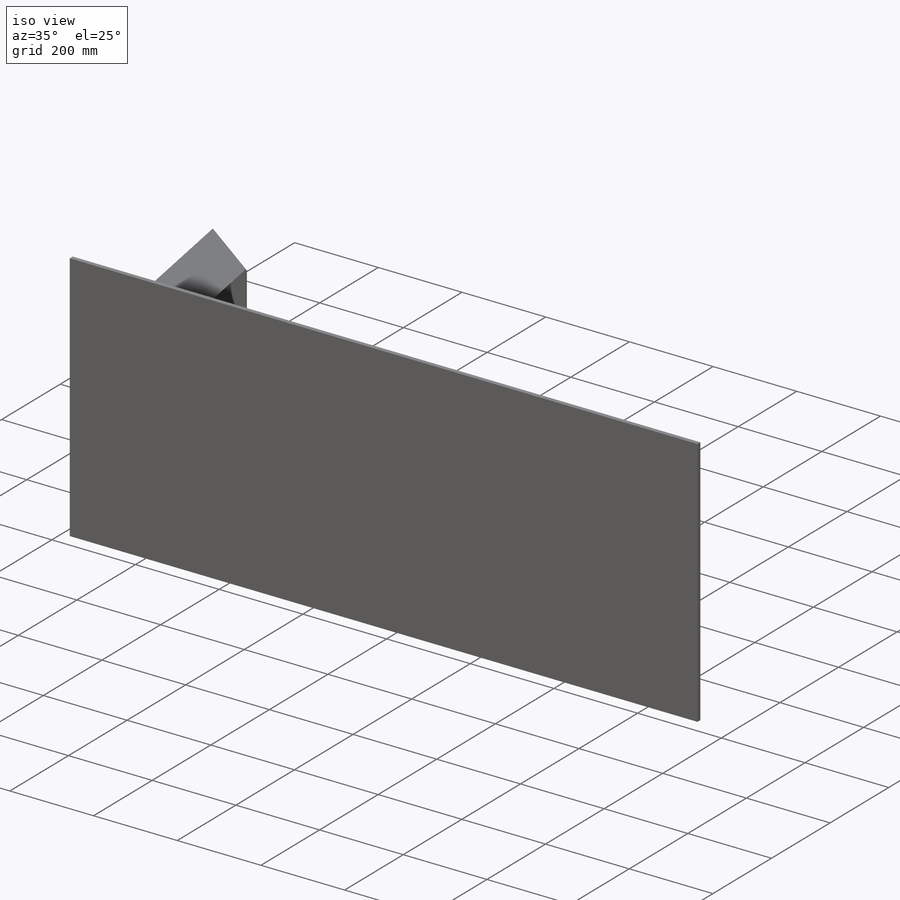
[diagram: iso view]
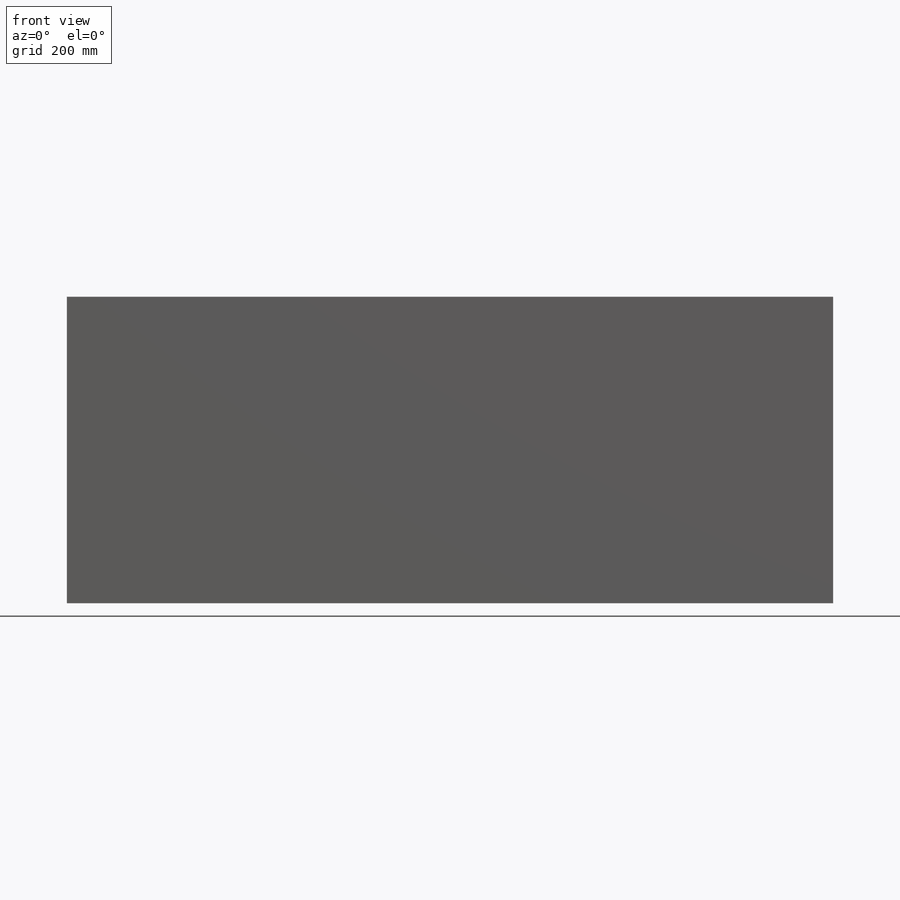
[diagram: front view]
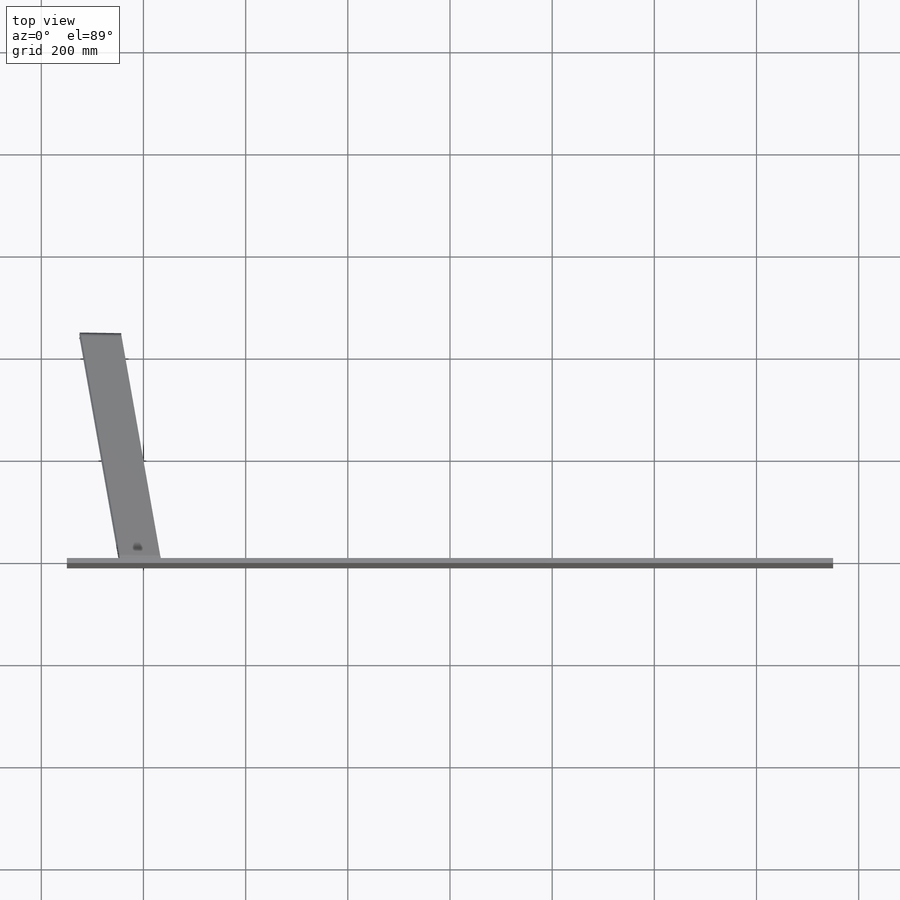
[diagram: top view]
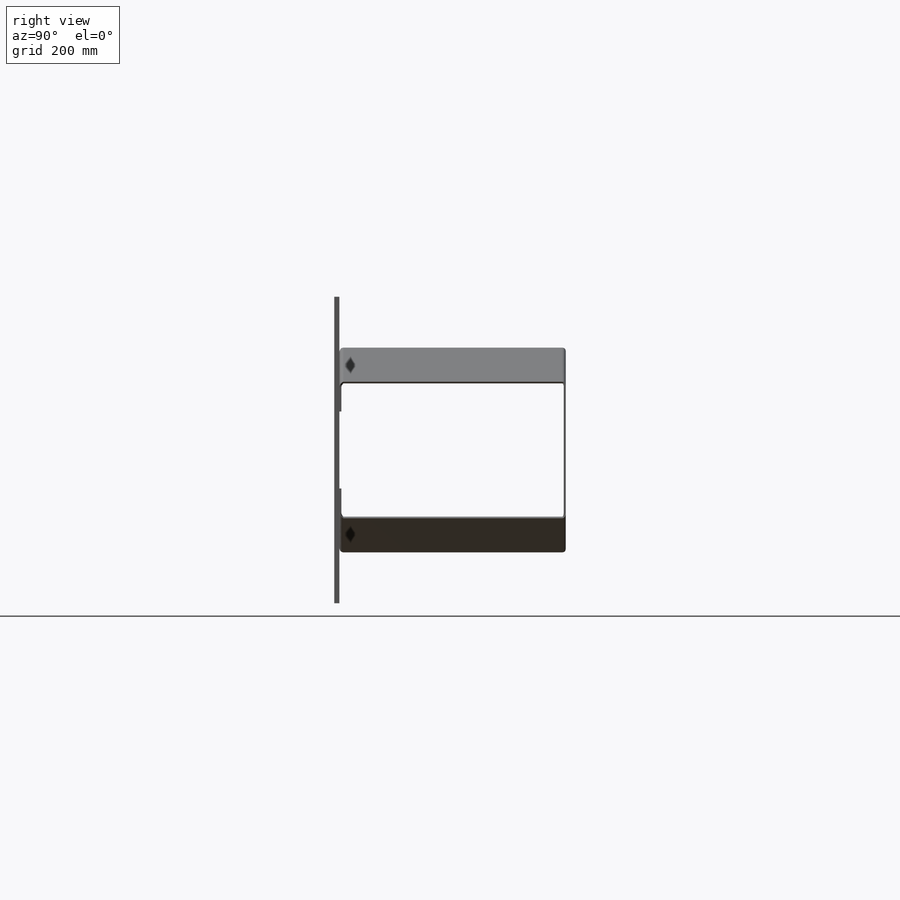
[diagram: right view]
SOLIDWORKS PART (.sldprt)
format: sldprt  version: not decoded by parser v0  size: 283,648 bytes
history: native  units: mm
features: sketch x10, sheet_metal_op x4, plane x3, extrude x2, material x1, shell x1 + 2 further entries (+9 scaffold rows collapsed)
feature tree (32):
  scaffold x9  (default folders/planes/origin — collapsed)
  material  "Materiał <nieokreślony>"
  plane  "Płaszczyzna przednia"
  plane  "Płaszczyzna górna"
  plane  "Płaszczyzna prawa"
  sketch  "Szkic1"  dims[D1=1500.0mm D2=600.0mm]
  extrude  "Dodanie-wyciągnięcie1"  Depth=10mm
  sketch  "wekt. kier."  dims[c1.D1=1500.0mm c2.D1=~106.227304deg c3.D1=~1745.329252mm]
  sketch  "Szkic2"
  extrude  "Dodanie-wyciągnięcie2"  Depth=450mm
  sketch  "Szkic3"
  shell  "Skorupa1"  Thickness=4mm
  sketch  "Szkic linii zgięć1"  dims[c1.D1=0.0mm c1.D4=~1457.508187mm c1.D5=2.0 c1.D8=~0.114592deg c1.D9=~0.114592deg c1.Ostre zgięcie2=0.0 c2.D1=0.0mm c2.D4=~1457.508187mm c2.D5=1.0 c2.D8=~0.114592deg c2.D9=~0.114592deg c2.Ostre zgięcie3=0.0 c3.D1=0.0mm c3.D4=~1684.084467mm c3.D5=4.0 c3.D8=~0.114592deg c3.D9=~0.114592deg c3.Ostre zgięcie4=0.0 c4.D1=0.0mm c4.D4=~1684.084467mm c4.D5=3.0 c4.D8=~0.114592deg c4.D9=~0.114592deg c5.D1=0.0mm]
  sketch  "Płaski szkic1"  dims[D1=0.0mm]
  sketch  "Linie zgięcia1"
  sketch  "Ramka-graniczna1"
  sheet_metal_op  "Arkusz blachy(3)"
  "Rozłożony model(3)"
  sketch  "Linie zgięcia2"
  sketch  "Ramka-graniczna2"
  "Transformacja szkicu1"
  sheet_metal_op  "Rozłożone-<Ostre zgięcie2>1"
  sheet_metal_op  "Rozłożone-<Ostre zgięcie3>1"
  sheet_metal_op  "Rozłożone-<Ostre zgięcie4>1"
decode coverage: 7 of 17 modeling features carry decoded parameters; 2 rows unclassified (native names shown)
note: ~ marks probable driven/reference dimensions
note: suppression state not decoded; provenance and decode notes live in map.json
